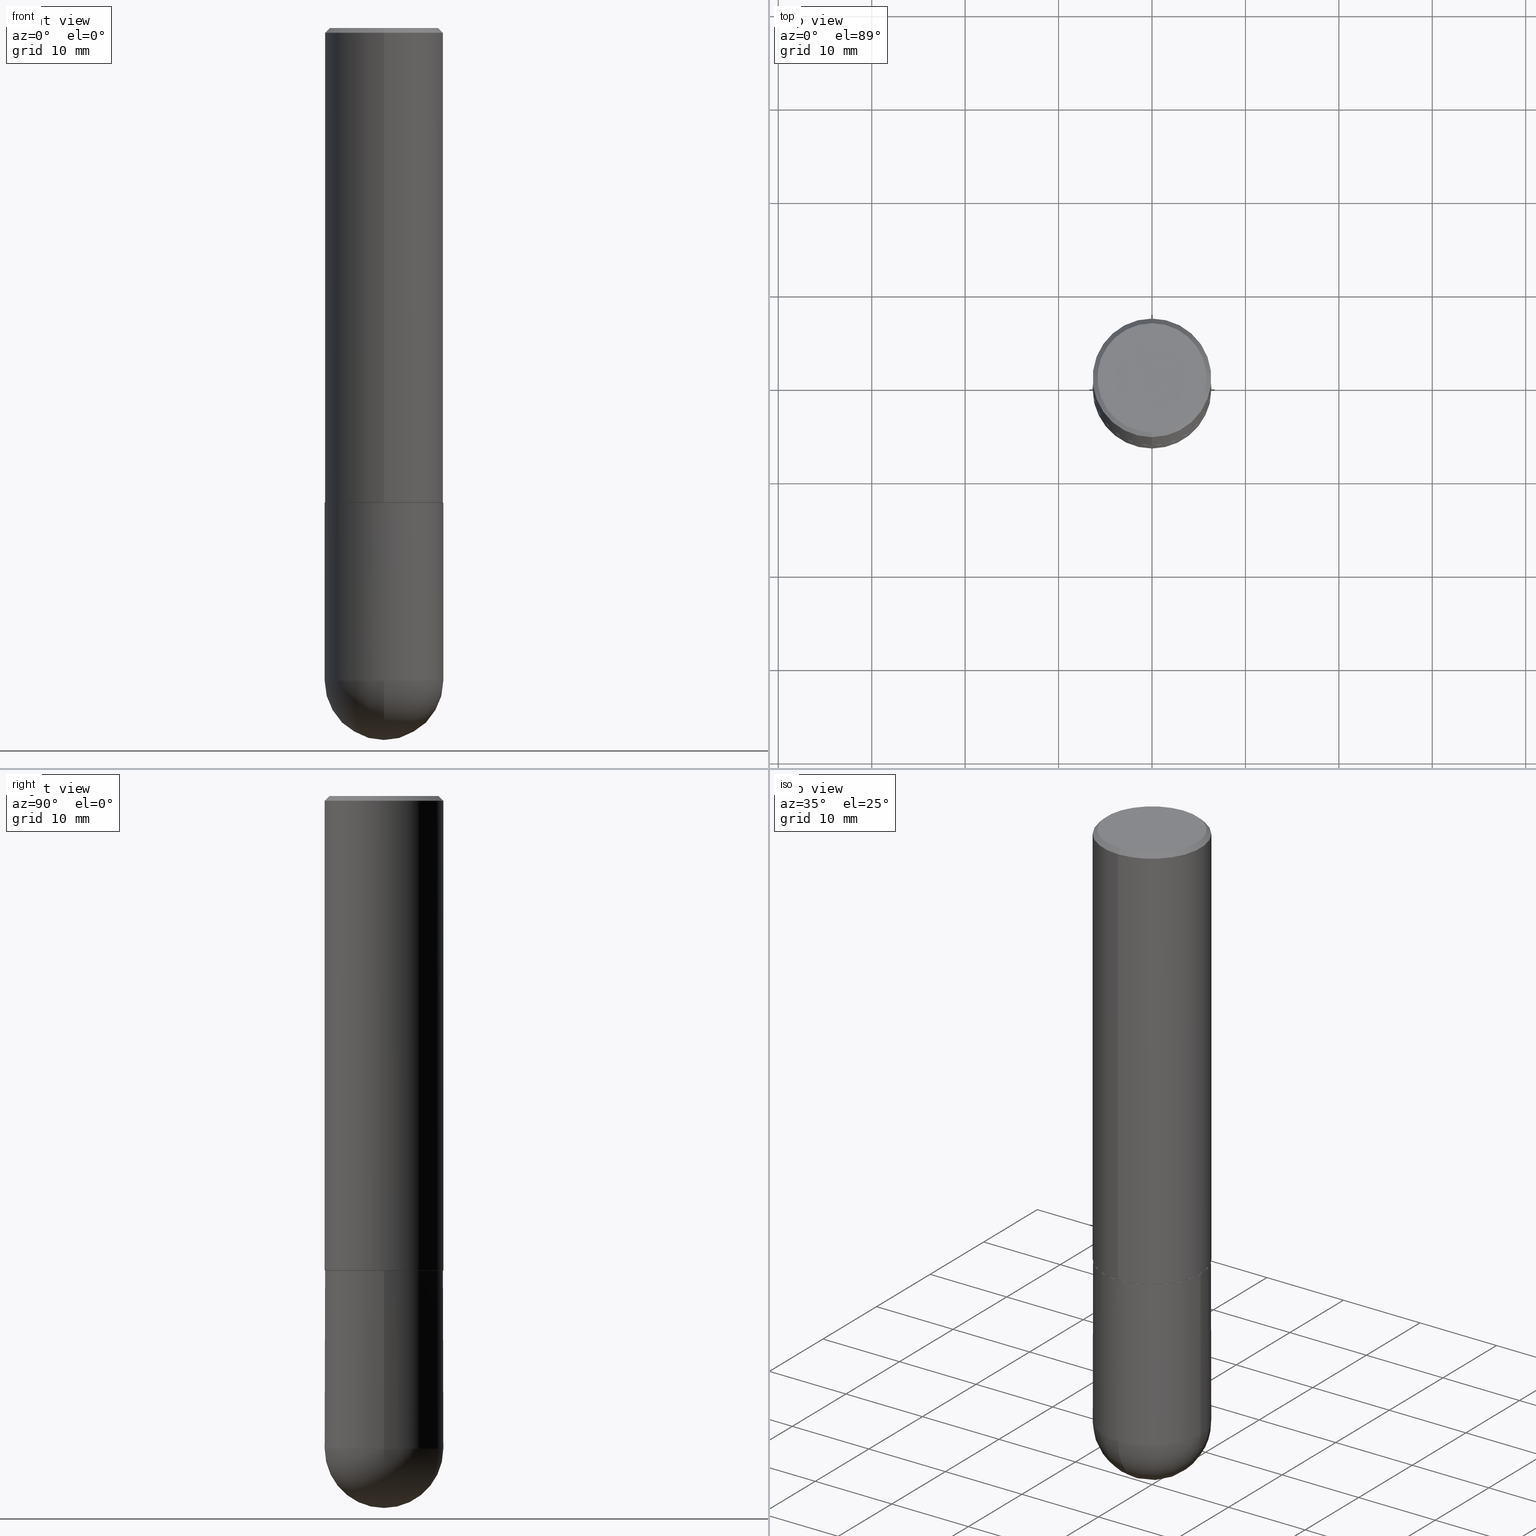
[diagram: canonical four-view strip — front | top / right | iso, engineering-drawing reading convention]
A machine part, canonical four-view strip (front | top / right | iso — engineering-drawing reading convention). The complete STEP part file that produces these views, byte-faithful:
ISO-10303-21;
HEADER;
FILE_DESCRIPTION (( 'STEP AP203' ),
    '1' );
FILE_NAME ('30185.STEP',
    '2024-02-21T16:36:16',
    ( '' ),
    ( '' ),
    'SwSTEP 2.0',
    'SolidWorks 2023',
    '' );
FILE_SCHEMA (( 'CONFIG_CONTROL_DESIGN' ));
ENDSEC;

DATA;
#1 = FACE_OUTER_BOUND ( 'NONE', #136, .T. ) ;
#2 = ORIENTED_EDGE ( 'NONE', *, *, #189, .T. ) ;
#3 = AXIS2_PLACEMENT_3D ( 'NONE', #45, #167, #302 ) ;
#4 = DIRECTION ( 'NONE',  ( -2.444172389132166101E-29, 3.493337881850475664E-15, 1.000000000000000000 ) ) ;
#5 = CARTESIAN_POINT ( 'NONE',  ( 6.725039217009124520E-29, -9.601573681818649859E-15, -2.750000000000000000 ) ) ;
#6 = AXIS2_PLACEMENT_3D ( 'NONE', #332, #266, #401 ) ;
#7 = LOCAL_TIME ( 11, 36, 16.00000000000000000, #338 ) ;
#8 = DATE_AND_TIME ( #229, #138 ) ;
#9 = ORIENTED_EDGE ( 'NONE', *, *, #46, .T. ) ;
#10 = EDGE_CURVE ( 'NONE', #72, #259, #12, .T. ) ;
#11 = DATE_TIME_ROLE ( 'creation_date' ) ;
#12 = LINE ( 'NONE', #395, #387 ) ;
#13 =( CONVERSION_BASED_UNIT ( 'INCH', #402 ) LENGTH_UNIT ( ) NAMED_UNIT ( #60 ) );
#14 = ORIENTED_EDGE ( 'NONE', *, *, #260, .F. ) ;
#15 = AXIS2_PLACEMENT_3D ( 'NONE', #152, #88, #316 ) ;
#16 = PRODUCT ( '30185', '30185', '', ( #393 ) ) ;
#17 = PRODUCT_DEFINITION_FORMATION_WITH_SPECIFIED_SOURCE ( 'ANY', '', #16, .NOT_KNOWN. ) ;
#18 = ORIENTED_EDGE ( 'NONE', *, *, #128, .F. ) ;
#19 = EDGE_CURVE ( 'NONE', #371, #403, #109, .T. ) ;
#20 = APPROVAL_STATUS ( 'not_yet_approved' ) ;
#21 = DIRECTION ( 'NONE',  ( -1.000000000000000000, 6.982962677686265922E-15, -4.876176775795935793E-29 ) ) ;
#22 = EDGE_LOOP ( 'NONE', ( #108, #295, #161, #208 ) ) ;
#23 = DIRECTION ( 'NONE',  ( -2.445468806185136877E-29, 3.491481338843145188E-15, 1.000000000000000000 ) ) ;
#24 = AXIS2_PLACEMENT_3D ( 'NONE', #184, #180, #317 ) ;
#25 = DIRECTION ( 'NONE',  ( -2.444172389132166101E-29, 3.493337881850475664E-15, 1.000000000000000000 ) ) ;
#26 = DIRECTION ( 'NONE',  ( -2.444172389132166101E-29, 3.493337881850475664E-15, 1.000000000000000000 ) ) ;
#27 = FACE_OUTER_BOUND ( 'NONE', #160, .T. ) ;
#28 = APPROVAL ( #20, 'UNSPECIFIED' ) ;
#29 = DIRECTION ( 'NONE',  ( -6.982962677686265133E-15, -1.000000000000000000, 3.291383124896702687E-15 ) ) ;
#30 = PLANE ( 'NONE',  #87 ) ;
#31 = ORIENTED_EDGE ( 'NONE', *, *, #10, .T. ) ;
#32 = ADVANCED_FACE ( 'NONE', ( #230 ), #334, .F. ) ;
#33 = CARTESIAN_POINT ( 'NONE',  ( 7.015976219256266741E-29, -1.093331829968014633E-14, -3.000000000000000888 ) ) ;
#34 = ORIENTED_EDGE ( 'NONE', *, *, #84, .F. ) ;
#35 = CIRCLE ( 'NONE', #357, 0.2500000000000000000 ) ;
#36 = CONICAL_SURFACE ( 'NONE', #183, 0.2500000000000000000, 0.7853981633974469467 ) ;
#37 = CARTESIAN_POINT ( 'NONE',  ( 0.2500000000000000000, -8.728703347107858632E-15, -2.000000000000000444 ) ) ;
#38 = CARTESIAN_POINT ( 'NONE',  ( -1.646519519465166770E-15, -0.2299999999999998990, 8.978019924995039553E-16 ) ) ;
#39 = FACE_OUTER_BOUND ( 'NONE', #52, .T. ) ;
#40 = EDGE_CURVE ( 'NONE', #255, #362, #233, .T. ) ;
#41 = CIRCLE ( 'NONE', #6, 0.2500000000000000000 ) ;
#42 = DIRECTION ( 'NONE',  ( 0.000000000000000000, 0.000000000000000000, 1.000000000000000000 ) ) ;
#43 = ORIENTED_EDGE ( 'NONE', *, *, #103, .F. ) ;
#44 = PERSON_AND_ORGANIZATION ( #244, #145 ) ;
#45 = CARTESIAN_POINT ( 'NONE',  ( 0.000000000000000000, 0.000000000000000000, 0.000000000000000000 ) ) ;
#46 = EDGE_CURVE ( 'NONE', #352, #362, #41, .T. ) ;
#47 = APPROVAL_ROLE ( '' ) ;
#48 = ORIENTED_EDGE ( 'NONE', *, *, #372, .F. ) ;
#49 = PERSON_AND_ORGANIZATION ( #244, #145 ) ;
#50 = AXIS2_PLACEMENT_3D ( 'NONE', #381, #294, #325 ) ;
#51 = CARTESIAN_POINT ( 'NONE',  ( 4.890937612370273754E-29, -6.982962677686291954E-15, -2.000000000000000444 ) ) ;
#52 = EDGE_LOOP ( 'NONE', ( #98, #68, #82, #369 ) ) ;
#53 = CARTESIAN_POINT ( 'NONE',  ( 6.725039217009124520E-29, -9.601573681818649859E-15, -2.750000000000000000 ) ) ;
#54 = ADVANCED_FACE ( 'NONE', ( #142 ), #273, .T. ) ;
#55 = LINE ( 'NONE', #279, #96 ) ;
#56 = DIRECTION ( 'NONE',  ( 1.000000000000000000, -6.982962677686262766E-15, 0.000000000000000000 ) ) ;
#57 = CC_DESIGN_PERSON_AND_ORGANIZATION_ASSIGNMENT ( #139, #396, ( #134 ) ) ;
#58 = CARTESIAN_POINT ( 'NONE',  ( 1.772804125721499264E-15, 0.2489999999999930047, -2.000000000000000888 ) ) ;
#59 = APPLICATION_CONTEXT ( 'configuration controlled 3d designs of mechanical parts and assemblies' ) ;
#60 = DIMENSIONAL_EXPONENTS ( 1.000000000000000000, 0.000000000000000000, 0.000000000000000000, 0.000000000000000000, 0.000000000000000000, 0.000000000000000000, 0.000000000000000000 ) ;
#61 = DIRECTION ( 'NONE',  ( 1.000000000000000000, -6.982962677686262766E-15, 0.000000000000000000 ) ) ;
#62 = SPHERICAL_SURFACE ( 'NONE', #50, 0.2500000000000001110 ) ;
#63 = ORIENTED_EDGE ( 'NONE', *, *, #405, .F. ) ;
#64 = DIRECTION ( 'NONE',  ( -2.444172389132165541E-29, 3.493337881850476059E-15, 1.000000000000000000 ) ) ;
#65 = DIRECTION ( 'NONE',  ( -1.000000000000000000, 7.105427357601001070E-15, -4.926315508542082329E-29 ) ) ;
#66 = CONICAL_SURFACE ( 'NONE', #206, 0.2489999999999999991, 0.7853981633975336552 ) ;
#67 = CYLINDRICAL_SURFACE ( 'NONE', #117, 0.2500000000000001110 ) ;
#68 = ORIENTED_EDGE ( 'NONE', *, *, #260, .T. ) ;
#69 = DIRECTION ( 'NONE',  ( 1.000000000000000000, -6.982962677686262766E-15, 0.000000000000000000 ) ) ;
#70 = EDGE_CURVE ( 'NONE', #107, #225, #170, .T. ) ;
#71 = COORDINATED_UNIVERSAL_TIME_OFFSET ( 5, 0, .BEHIND. ) ;
#72 = VERTEX_POINT ( 'NONE', #175 ) ;
#73 = CIRCLE ( 'NONE', #231, 0.2489999999999999991 ) ;
#74 = APPROVAL_PERSON_ORGANIZATION ( #368, #227, #237 ) ;
#75 = CARTESIAN_POINT ( 'NONE',  ( 1.745740669421566875E-15, 0.2499999999999999167, -0.02000000000000093023 ) ) ;
#76 = COORDINATED_UNIVERSAL_TIME_OFFSET ( 5, 0, .BEHIND. ) ;
#77 = DIRECTION ( 'NONE',  ( 1.000000000000000000, -6.982962677686266711E-15, 0.000000000000000000 ) ) ;
#78 = PRODUCT_DEFINITION_SHAPE ( 'NONE', 'NONE',  #134 ) ;
#79 =( NAMED_UNIT ( * ) PLANE_ANGLE_UNIT ( ) SI_UNIT ( $, .RADIAN. ) );
#80 = EDGE_LOOP ( 'NONE', ( #127, #228 ) ) ;
#81 = AXIS2_PLACEMENT_3D ( 'NONE', #191, #286, #412 ) ;
#82 = ORIENTED_EDGE ( 'NONE', *, *, #242, .F. ) ;
#83 = DIRECTION ( 'NONE',  ( -2.444172389132166101E-29, 3.493337881850475664E-15, 1.000000000000000000 ) ) ;
#84 = EDGE_CURVE ( 'NONE', #326, #362, #89, .T. ) ;
#85 = CYLINDRICAL_SURFACE ( 'NONE', #15, 0.2500000000000000000 ) ;
#86 = DIRECTION ( 'NONE',  ( 1.000000000000000000, -6.982962677686265922E-15, 4.883557194083112340E-29 ) ) ;
#87 = AXIS2_PLACEMENT_3D ( 'NONE', #354, #64, #289 ) ;
#88 = DIRECTION ( 'NONE',  ( -2.445468806185136597E-29, 3.491481338843145583E-15, 1.000000000000000000 ) ) ;
#89 = LINE ( 'NONE', #406, #250 ) ;
#90 = DIRECTION ( 'NONE',  ( -6.982962677686265133E-15, -1.000000000000000000, 3.291383124896702687E-15 ) ) ;
#91 = CIRCLE ( 'NONE', #151, 0.2500000000000001110 ) ;
#92 = CARTESIAN_POINT ( 'NONE',  ( -0.2500000000000000000, -6.515911340352220442E-15, -2.000000000000000444 ) ) ;
#93 = DIRECTION ( 'NONE',  ( -2.445468806185136597E-29, 3.491481338843145583E-15, 1.000000000000000000 ) ) ;
#94 = CARTESIAN_POINT ( 'NONE',  ( -1.776356839400184989E-15, -0.2500000000000098810, -2.749999999999998668 ) ) ;
#95 = ORIENTED_EDGE ( 'NONE', *, *, #103, .T. ) ;
#96 = VECTOR ( 'NONE', #114, 39.37007874015748143 ) ;
#97 = CARTESIAN_POINT ( 'NONE',  ( 1.776356839400276103E-15, 0.2499999999999933109, -1.999000000000000998 ) ) ;
#98 = ORIENTED_EDGE ( 'NONE', *, *, #186, .T. ) ;
#99 = SECURITY_CLASSIFICATION_LEVEL ( 'unclassified' ) ;
#100 = ORIENTED_EDGE ( 'NONE', *, *, #115, .T. ) ;
#101 = PERSON_AND_ORGANIZATION ( #244, #145 ) ;
#102 = DIRECTION ( 'NONE',  ( -2.445468806185136597E-29, 3.491481338843145583E-15, 1.000000000000000000 ) ) ;
#103 = EDGE_CURVE ( 'NONE', #287, #255, #131, .T. ) ;
#104 = CIRCLE ( 'NONE', #275, 0.2489999999999999991 ) ;
#105 = ORIENTED_EDGE ( 'NONE', *, *, #40, .F. ) ;
#106 = PERSON_AND_ORGANIZATION_ROLE ( 'classification_officer' ) ;
#107 = VERTEX_POINT ( 'NONE', #243 ) ;
#108 = ORIENTED_EDGE ( 'NONE', *, *, #353, .F. ) ;
#109 = CIRCLE ( 'NONE', #349, 0.2500000000000000000 ) ;
#110 = ADVANCED_FACE ( 'NONE', ( #377 ), #36, .T. ) ;
#111 = AXIS2_PLACEMENT_3D ( 'NONE', #348, #319, #311 ) ;
#112 = CARTESIAN_POINT ( 'NONE',  ( -1.745740669421567467E-15, -0.2500000000000001110, 8.733344704626194091E-16 ) ) ;
#113 = LINE ( 'NONE', #112, #268 ) ;
#114 = DIRECTION ( 'NONE',  ( 5.024295867788490741E-15, 0.7071067811866103003, 0.7071067811864847341 ) ) ;
#115 = EDGE_CURVE ( 'NONE', #362, #352, #199, .T. ) ;
#116 = DATE_AND_TIME ( #345, #246 ) ;
#117 = AXIS2_PLACEMENT_3D ( 'NONE', #162, #4, #355 ) ;
#118 = CARTESIAN_POINT ( 'NONE',  ( 4.888344778264345199E-31, -6.986675763700970113E-17, -0.02000000000000005593 ) ) ;
#119 = DIRECTION ( 'NONE',  ( -2.445468806185136597E-29, 3.491481338843145583E-15, 1.000000000000000000 ) ) ;
#120 = LINE ( 'NONE', #249, #389 ) ;
#121 = EDGE_CURVE ( 'NONE', #259, #352, #113, .T. ) ;
#122 = CARTESIAN_POINT ( 'NONE',  ( 6.393919439095240515E-29, -1.007575604995870173E-14, -2.750000000000000444 ) ) ;
#123 = AXIS2_PLACEMENT_3D ( 'NONE', #277, #25, #374 ) ;
#124 = DIRECTION ( 'NONE',  ( -2.444172389132166101E-29, 3.493337881850475664E-15, 1.000000000000000000 ) ) ;
#125 = ORIENTED_EDGE ( 'NONE', *, *, #219, .F. ) ;
#126 = CARTESIAN_POINT ( 'NONE',  ( 4.888344778264332763E-29, -6.986675763700951328E-15, -2.000000000000000444 ) ) ;
#127 = ORIENTED_EDGE ( 'NONE', *, *, #186, .F. ) ;
#128 = EDGE_CURVE ( 'NONE', #360, #225, #288, .T. ) ;
#129 = CARTESIAN_POINT ( 'NONE',  ( 6.393919439095240515E-29, -1.007575604995870173E-14, -2.750000000000000444 ) ) ;
#130 = EDGE_LOOP ( 'NONE', ( #34, #2, #262, #203 ) ) ;
#131 = CIRCLE ( 'NONE', #123, 0.2299999999999998990 ) ;
#132 = MANIFOLD_SOLID_BREP ( 'Body-Move/Copy2[1]', #397 ) ;
#133 = ORIENTED_EDGE ( 'NONE', *, *, #340, .F. ) ;
#134 = PRODUCT_DEFINITION ( 'UNKNOWN', '', #17, #347 ) ;
#135 =( NAMED_UNIT ( * ) SI_UNIT ( $, .STERADIAN. ) SOLID_ANGLE_UNIT ( ) );
#136 = EDGE_LOOP ( 'NONE', ( #14, #291, #31, #336 ) ) ;
#137 = DIRECTION ( 'NONE',  ( -4.937700262164969294E-15, -0.7071067811866054154, 0.7071067811864896191 ) ) ;
#138 = LOCAL_TIME ( 11, 36, 16.00000000000000000, #71 ) ;
#139 = PERSON_AND_ORGANIZATION ( #244, #145 ) ;
#140 = ORIENTED_EDGE ( 'NONE', *, *, #19, .T. ) ;
#141 = APPROVAL_ROLE ( '' ) ;
#142 = FACE_OUTER_BOUND ( 'NONE', #304, .T. ) ;
#143 = ORIENTED_EDGE ( 'NONE', *, *, #285, .F. ) ;
#144 = AXIS2_PLACEMENT_3D ( 'NONE', #359, #188, #69 ) ;
#145 = ORGANIZATION ( 'UNSPECIFIED', 'UNSPECIFIED', '' ) ;
#146 = CARTESIAN_POINT ( 'NONE',  ( 4.885900605875200945E-29, -6.983182425819101458E-15, -1.999000000000000110 ) ) ;
#147 = CARTESIAN_POINT ( 'NONE',  ( 0.2500000000000000000, -1.745740669421566678E-15, 1.219044193948983948E-29 ) ) ;
#148 = CARTESIAN_POINT ( 'NONE',  ( 1.745740669421632745E-15, 0.2499999999999902300, -2.750000000000000888 ) ) ;
#149 = ADVANCED_BREP_SHAPE_REPRESENTATION ( '30185', ( #132, #269, #290 ), #185 ) ;
#150 = ADVANCED_FACE ( 'NONE', ( #215 ), #379, .F. ) ;
#151 = AXIS2_PLACEMENT_3D ( 'NONE', #129, #65, #222 ) ;
#152 = CARTESIAN_POINT ( 'NONE',  ( 0.000000000000000000, 0.000000000000000000, 0.000000000000000000 ) ) ;
#153 = DIRECTION ( 'NONE',  ( -2.444172389132166101E-29, 3.493337881850476059E-15, 1.000000000000000000 ) ) ;
#154 = DIRECTION ( 'NONE',  ( -6.982962677686265922E-15, -1.000000000000000000, 3.493337881850475270E-15 ) ) ;
#155 = LINE ( 'NONE', #351, #343 ) ;
#156 = ORIENTED_EDGE ( 'NONE', *, *, #394, .F. ) ;
#157 = AXIS2_PLACEMENT_3D ( 'NONE', #182, #83, #240 ) ;
#158 = SPHERICAL_SURFACE ( 'NONE', #382, 0.2500000000000001110 ) ;
#159 = ADVANCED_FACE ( 'NONE', ( #214 ), #209, .T. ) ;
#160 = EDGE_LOOP ( 'NONE', ( #156, #174, #165, #253, #143 ) ) ;
#161 = ORIENTED_EDGE ( 'NONE', *, *, #70, .F. ) ;
#162 = CARTESIAN_POINT ( 'NONE',  ( 0.000000000000000000, 0.000000000000000000, 0.000000000000000000 ) ) ;
#163 = AXIS2_PLACEMENT_3D ( 'NONE', #172, #366, #21 ) ;
#164 = CIRCLE ( 'NONE', #337, 0.2299999999999998990 ) ;
#165 = ORIENTED_EDGE ( 'NONE', *, *, #210, .T. ) ;
#166 = DATE_AND_TIME ( #335, #399 ) ;
#167 = DIRECTION ( 'NONE',  ( -2.444172389132166101E-29, 3.493337881850475664E-15, 1.000000000000000000 ) ) ;
#168 = CALENDAR_DATE ( 2024, 21, 2 ) ;
#169 = ORIENTED_EDGE ( 'NONE', *, *, #242, .T. ) ;
#170 = CIRCLE ( 'NONE', #318, 0.2500000000000000000 ) ;
#171 = CC_DESIGN_APPROVAL ( #28, ( #178 ) ) ;
#172 = CARTESIAN_POINT ( 'NONE',  ( 1.745740669421615390E-15, 0.2499999999999930334, -2.000000000000000888 ) ) ;
#173 = CC_DESIGN_PERSON_AND_ORGANIZATION_ASSIGNMENT ( #391, #331, ( #17 ) ) ;
#174 = ORIENTED_EDGE ( 'NONE', *, *, #372, .T. ) ;
#175 = CARTESIAN_POINT ( 'NONE',  ( -1.738757706743831360E-15, -0.2490000000000069935, -1.999999999999999334 ) ) ;
#176 = CC_DESIGN_PERSON_AND_ORGANIZATION_ASSIGNMENT ( #44, #270, ( #17 ) ) ;
#177 = VECTOR ( 'NONE', #202, 39.37007874015748143 ) ;
#178 = SECURITY_CLASSIFICATION ( '', '', #99 ) ;
#179 = DIRECTION ( 'NONE',  ( -6.982962677686266711E-15, -1.000000000000000000, 3.278217592397113101E-15 ) ) ;
#180 = DIRECTION ( 'NONE',  ( 2.444172389132165541E-29, -3.493337881850476059E-15, -1.000000000000000000 ) ) ;
#181 = SHAPE_DEFINITION_REPRESENTATION ( #78, #149 ) ;
#182 = CARTESIAN_POINT ( 'NONE',  ( 4.888344778264345199E-31, -6.986675763700970113E-17, -0.02000000000000005593 ) ) ;
#183 = AXIS2_PLACEMENT_3D ( 'NONE', #118, #375, #284 ) ;
#184 = CARTESIAN_POINT ( 'NONE',  ( 1.606081415867840476E-15, 0.2299999999999998990, -7.563005729886615428E-16 ) ) ;
#185 =( GEOMETRIC_REPRESENTATION_CONTEXT ( 3 ) GLOBAL_UNCERTAINTY_ASSIGNED_CONTEXT ( ( #313 ) ) GLOBAL_UNIT_ASSIGNED_CONTEXT ( ( #13, #79, #135 ) ) REPRESENTATION_CONTEXT ( 'NONE', 'WORKASPACE' ) );
#186 = EDGE_CURVE ( 'NONE', #72, #205, #73, .T. ) ;
#187 = DIRECTION ( 'NONE',  ( -4.851104656540957175E-15, -0.7071067811865490160, -0.7071067811865460184 ) ) ;
#188 = DIRECTION ( 'NONE',  ( -2.445468806185136597E-29, 3.491481338843145583E-15, 1.000000000000000000 ) ) ;
#189 = EDGE_CURVE ( 'NONE', #326, #259, #312, .T. ) ;
#190 = ADVANCED_FACE ( 'NONE', ( #27 ), #85, .T. ) ;
#191 = CARTESIAN_POINT ( 'NONE',  ( 4.888344778264345199E-31, -6.986675763700970113E-17, -0.02000000000000005593 ) ) ;
#192 = CC_DESIGN_APPROVAL ( #227, ( #134 ) ) ;
#193 = FACE_OUTER_BOUND ( 'NONE', #197, .T. ) ;
#194 = EDGE_LOOP ( 'NONE', ( #339, #373, #404, #125, #309 ) ) ;
#195 = DIRECTION ( 'NONE',  ( -1.000000000000000000, 6.982962677686265922E-15, -4.883557194083113462E-29 ) ) ;
#196 = ORIENTED_EDGE ( 'NONE', *, *, #330, .T. ) ;
#197 = EDGE_LOOP ( 'NONE', ( #18, #236, #48, #133 ) ) ;
#198 = EDGE_CURVE ( 'NONE', #205, #72, #104, .T. ) ;
#199 = CIRCLE ( 'NONE', #157, 0.2500000000000000000 ) ;
#200 = CC_DESIGN_APPROVAL ( #385, ( #17 ) ) ;
#201 = CALENDAR_DATE ( 2024, 21, 2 ) ;
#202 = DIRECTION ( 'NONE',  ( 4.937700262164540942E-15, 0.7071067811865441310, -0.7071067811865509034 ) ) ;
#203 = ORIENTED_EDGE ( 'NONE', *, *, #115, .F. ) ;
#204 = APPROVAL_DATE_TIME ( #8, #227 ) ;
#205 = VERTEX_POINT ( 'NONE', #58 ) ;
#206 = AXIS2_PLACEMENT_3D ( 'NONE', #292, #384, #90 ) ;
#207 = DATE_AND_TIME ( #201, #358 ) ;
#208 = ORIENTED_EDGE ( 'NONE', *, *, #210, .F. ) ;
#209 = CYLINDRICAL_SURFACE ( 'NONE', #111, 0.2500000000000000000 ) ;
#210 = EDGE_CURVE ( 'NONE', #329, #107, #35, .T. ) ;
#211 = CARTESIAN_POINT ( 'NONE',  ( 1.675911042644703774E-15, 0.2299999999999998990, -7.091334331517141048E-16 ) ) ;
#212 = AXIS2_PLACEMENT_3D ( 'NONE', #213, #26, #346 ) ;
#213 = CARTESIAN_POINT ( 'NONE',  ( 4.885900605875200945E-29, -6.983182425819101458E-15, -1.999000000000000110 ) ) ;
#214 = FACE_OUTER_BOUND ( 'NONE', #194, .T. ) ;
#215 = FACE_OUTER_BOUND ( 'NONE', #264, .T. ) ;
#216 = AXIS2_PLACEMENT_3D ( 'NONE', #5, #254, #324 ) ;
#217 = CARTESIAN_POINT ( 'NONE',  ( 4.890937612370273754E-29, -6.982962677686291954E-15, -2.000000000000000444 ) ) ;
#218 = CARTESIAN_POINT ( 'NONE',  ( -2.305692417276057151E-45, 3.295415127418944709E-31, 9.433427967389492523E-17 ) ) ;
#219 = EDGE_CURVE ( 'NONE', #107, #371, #407, .T. ) ;
#220 = DIRECTION ( 'NONE',  ( 1.000000000000000000, -6.982962677686266711E-15, 0.000000000000000000 ) ) ;
#221 = ORIENTED_EDGE ( 'NONE', *, *, #405, .T. ) ;
#222 = DIRECTION ( 'NONE',  ( -7.105427357601001859E-15, -1.000000000000000000, 0.000000000000000000 ) ) ;
#223 = AXIS2_PLACEMENT_3D ( 'NONE', #217, #93, #220 ) ;
#224 = CARTESIAN_POINT ( 'NONE',  ( 1.745740669421566875E-15, 0.2499999999999999167, -0.02000000000000093023 ) ) ;
#225 = VERTEX_POINT ( 'NONE', #148 ) ;
#226 =( LENGTH_UNIT ( ) NAMED_UNIT ( * ) SI_UNIT ( $, .METRE. ) );
#227 = APPROVAL ( #307, 'UNSPECIFIED' ) ;
#228 = ORIENTED_EDGE ( 'NONE', *, *, #198, .F. ) ;
#229 = CALENDAR_DATE ( 2024, 21, 2 ) ;
#230 = FACE_OUTER_BOUND ( 'NONE', #321, .T. ) ;
#231 = AXIS2_PLACEMENT_3D ( 'NONE', #280, #247, #29 ) ;
#232 = PERSON_AND_ORGANIZATION_ROLE ( 'design_owner' ) ;
#233 = LINE ( 'NONE', #75, #177 ) ;
#234 = CC_DESIGN_DATE_AND_TIME_ASSIGNMENT ( #166, #301, ( #178 ) ) ;
#235 = COORDINATED_UNIVERSAL_TIME_OFFSET ( 5, 0, .BEHIND. ) ;
#236 = ORIENTED_EDGE ( 'NONE', *, *, #353, .T. ) ;
#237 = APPROVAL_ROLE ( '' ) ;
#238 = VERTEX_POINT ( 'NONE', #408 ) ;
#239 = APPROVAL_PERSON_ORGANIZATION ( #49, #28, #141 ) ;
#240 = DIRECTION ( 'NONE',  ( -6.982962677686265922E-15, -1.000000000000000000, 3.500180241882337261E-15 ) ) ;
#241 = DIRECTION ( 'NONE',  ( -2.444172389132166101E-29, 3.493337881850476059E-15, 1.000000000000000000 ) ) ;
#242 = EDGE_CURVE ( 'NONE', #259, #326, #350, .T. ) ;
#243 = CARTESIAN_POINT ( 'NONE',  ( 0.2500000000000000000, -1.003800884917403995E-14, -2.750000000000000000 ) ) ;
#244 = PERSON ( 'UNSPECIFIED', 'UNSPECIFIED', 'UNSPECIFIED', ('UNSPECIFIED'), ('UNSPECIFIED'), ('UNSPECIFIED') ) ;
#245 = CIRCLE ( 'NONE', #223, 0.2500000000000000000 ) ;
#246 = LOCAL_TIME ( 11, 36, 16.00000000000000000, #272 ) ;
#247 = DIRECTION ( 'NONE',  ( -2.444172389132166101E-29, 3.493337881850475664E-15, 1.000000000000000000 ) ) ;
#248 = CARTESIAN_POINT ( 'NONE',  ( 6.393919439095240515E-29, -1.007575604995870173E-14, -2.750000000000000444 ) ) ;
#249 = CARTESIAN_POINT ( 'NONE',  ( -0.2500000000000000000, 1.776356839400250465E-15, -1.229733772563726445E-29 ) ) ;
#250 = VECTOR ( 'NONE', #153, 39.37007874015748143 ) ;
#251 = FACE_OUTER_BOUND ( 'NONE', #130, .T. ) ;
#252 = CC_DESIGN_PERSON_AND_ORGANIZATION_ASSIGNMENT ( #298, #232, ( #16 ) ) ;
#253 = ORIENTED_EDGE ( 'NONE', *, *, #219, .T. ) ;
#254 = DIRECTION ( 'NONE',  ( -2.445468806185136597E-29, 3.491481338843145583E-15, 1.000000000000000000 ) ) ;
#255 = VERTEX_POINT ( 'NONE', #211 ) ;
#256 = DIRECTION ( 'NONE',  ( -2.445468806185136877E-29, 3.491481338843145188E-15, 1.000000000000000000 ) ) ;
#257 = DIRECTION ( 'NONE',  ( -6.982962677686265133E-15, -1.000000000000000000, 3.291383124896702687E-15 ) ) ;
#258 = CONICAL_SURFACE ( 'NONE', #81, 0.2500000000000000000, 0.7853981633974469467 ) ;
#259 = VERTEX_POINT ( 'NONE', #342 ) ;
#260 = EDGE_CURVE ( 'NONE', #205, #326, #55, .T. ) ;
#261 = DIRECTION ( 'NONE',  ( 1.000000000000000000, 0.000000000000000000, 0.000000000000000000 ) ) ;
#262 = ORIENTED_EDGE ( 'NONE', *, *, #121, .T. ) ;
#263 = APPLICATION_PROTOCOL_DEFINITION ( 'international standard', 'config_control_design', 1994, #306 ) ;
#264 = EDGE_LOOP ( 'NONE', ( #196, #95 ) ) ;
#265 = APPLICATION_PROTOCOL_DEFINITION ( 'international standard', 'config_control_design', 1994, #59 ) ;
#266 = DIRECTION ( 'NONE',  ( -2.444172389132166101E-29, 3.493337881850475664E-15, 1.000000000000000000 ) ) ;
#267 = VECTOR ( 'NONE', #23, 39.37007874015748143 ) ;
#268 = VECTOR ( 'NONE', #241, 39.37007874015748143 ) ;
#269 = MANIFOLD_SOLID_BREP ( 'Body-Move/Copy2[2]', #296 ) ;
#270 = PERSON_AND_ORGANIZATION_ROLE ( 'design_supplier' ) ;
#271 = ORIENTED_EDGE ( 'NONE', *, *, #46, .F. ) ;
#272 = COORDINATED_UNIVERSAL_TIME_OFFSET ( 5, 0, .BEHIND. ) ;
#273 = CYLINDRICAL_SURFACE ( 'NONE', #3, 0.2500000000000001110 ) ;
#274 = ORIENTED_EDGE ( 'NONE', *, *, #330, .F. ) ;
#275 = AXIS2_PLACEMENT_3D ( 'NONE', #378, #314, #341 ) ;
#276 = CC_DESIGN_PERSON_AND_ORGANIZATION_ASSIGNMENT ( #400, #106, ( #178 ) ) ;
#277 = CARTESIAN_POINT ( 'NONE',  ( -2.305692417276057151E-45, 3.295415127418944709E-31, 9.433427967389492523E-17 ) ) ;
#278 = APPROVAL_DATE_TIME ( #116, #28 ) ;
#279 = CARTESIAN_POINT ( 'NONE',  ( 1.769251412042697971E-15, 0.2489999999999930047, -2.000000000000000888 ) ) ;
#280 = CARTESIAN_POINT ( 'NONE',  ( 4.888344778264332763E-29, -6.986675763700951328E-15, -2.000000000000000444 ) ) ;
#281 = ADVANCED_FACE ( 'NONE', ( #39 ), #66, .T. ) ;
#282 = CONICAL_SURFACE ( 'NONE', #305, 0.2489999999999999991, 0.7853981633975336552 ) ;
#283 = DIRECTION ( 'NONE',  ( 6.982962677686266711E-15, 1.000000000000000000, 0.000000000000000000 ) ) ;
#284 = DIRECTION ( 'NONE',  ( 6.982962677686265922E-15, 1.000000000000000000, -3.500180241882337261E-15 ) ) ;
#285 = EDGE_CURVE ( 'NONE', #403, #371, #245, .T. ) ;
#286 = DIRECTION ( 'NONE',  ( 2.444172389132166101E-29, -3.493337881850475664E-15, -1.000000000000000000 ) ) ;
#287 = VERTEX_POINT ( 'NONE', #38 ) ;
#288 = CIRCLE ( 'NONE', #297, 0.2500000000000001110 ) ;
#289 = DIRECTION ( 'NONE',  ( -6.982962677686265922E-15, -1.000000000000000000, 3.493337881850476059E-15 ) ) ;
#290 = AXIS2_PLACEMENT_3D ( 'NONE', #370, #42, #261 ) ;
#291 = ORIENTED_EDGE ( 'NONE', *, *, #198, .T. ) ;
#292 = CARTESIAN_POINT ( 'NONE',  ( 4.888344778264332763E-29, -6.986675763700951328E-15, -2.000000000000000444 ) ) ;
#293 = ORIENTED_EDGE ( 'NONE', *, *, #285, .T. ) ;
#294 = DIRECTION ( 'NONE',  ( -1.000000000000000000, 6.982962677686265922E-15, -4.883557194083113462E-29 ) ) ;
#295 = ORIENTED_EDGE ( 'NONE', *, *, #128, .T. ) ;
#296 = CLOSED_SHELL ( 'NONE', ( #281, #54, #363, #110, #310, #315, #411, #150 ) ) ;
#297 = AXIS2_PLACEMENT_3D ( 'NONE', #248, #86, #283 ) ;
#298 = PERSON_AND_ORGANIZATION ( #244, #145 ) ;
#299 = EDGE_LOOP ( 'NONE', ( #63, #274, #327, #100 ) ) ;
#300 = PRODUCT_RELATED_PRODUCT_CATEGORY ( 'detail', '', ( #16 ) ) ;
#301 = DATE_TIME_ROLE ( 'classification_date' ) ;
#302 = DIRECTION ( 'NONE',  ( -6.982962677686266711E-15, -1.000000000000000000, 3.493337881850476059E-15 ) ) ;
#303 = DATE_AND_TIME ( #168, #7 ) ;
#304 = EDGE_LOOP ( 'NONE', ( #169, #392, #271, #308 ) ) ;
#305 = AXIS2_PLACEMENT_3D ( 'NONE', #126, #390, #257 ) ;
#306 = APPLICATION_CONTEXT ( 'configuration controlled 3d designs of mechanical parts and assemblies' ) ;
#307 = APPROVAL_STATUS ( 'not_yet_approved' ) ;
#308 = ORIENTED_EDGE ( 'NONE', *, *, #121, .F. ) ;
#309 = ORIENTED_EDGE ( 'NONE', *, *, #70, .T. ) ;
#310 = ADVANCED_FACE ( 'NONE', ( #251 ), #67, .T. ) ;
#311 = DIRECTION ( 'NONE',  ( 1.000000000000000000, -6.982962677686266711E-15, 4.876176775795935793E-29 ) ) ;
#312 = CIRCLE ( 'NONE', #212, 0.2500000000000002220 ) ;
#313 = UNCERTAINTY_MEASURE_WITH_UNIT (LENGTH_MEASURE( 1.000000000000000082E-05 ), #13, 'distance_accuracy_value', 'NONE');
#314 = DIRECTION ( 'NONE',  ( -2.444172389132166101E-29, 3.493337881850475664E-15, 1.000000000000000000 ) ) ;
#315 = ADVANCED_FACE ( 'NONE', ( #1 ), #282, .T. ) ;
#316 = DIRECTION ( 'NONE',  ( 1.000000000000000000, -6.982962677686266711E-15, 4.876176775795935793E-29 ) ) ;
#317 = DIRECTION ( 'NONE',  ( 6.982962677686265922E-15, 1.000000000000000000, -3.493337881850476059E-15 ) ) ;
#318 = AXIS2_PLACEMENT_3D ( 'NONE', #398, #119, #61 ) ;
#319 = DIRECTION ( 'NONE',  ( -2.445468806185136597E-29, 3.491481338843145583E-15, 1.000000000000000000 ) ) ;
#320 = FACE_OUTER_BOUND ( 'NONE', #80, .T. ) ;
#321 = EDGE_LOOP ( 'NONE', ( #140, #293 ) ) ;
#322 = ADVANCED_FACE ( 'NONE', ( #386 ), #62, .T. ) ;
#323 = CARTESIAN_POINT ( 'NONE',  ( -1.715124499442882299E-15, -0.2500000000000000555, -0.01999999999999918163 ) ) ;
#324 = DIRECTION ( 'NONE',  ( 1.000000000000000000, -6.982962677686262766E-15, 0.000000000000000000 ) ) ;
#325 = DIRECTION ( 'NONE',  ( 6.982962677686265922E-15, 1.000000000000000000, -4.370956789862818783E-15 ) ) ;
#326 = VERTEX_POINT ( 'NONE', #97 ) ;
#327 = ORIENTED_EDGE ( 'NONE', *, *, #40, .T. ) ;
#328 = CIRCLE ( 'NONE', #144, 0.2500000000000000000 ) ;
#329 = VERTEX_POINT ( 'NONE', #94 ) ;
#330 = EDGE_CURVE ( 'NONE', #255, #287, #164, .T. ) ;
#331 = PERSON_AND_ORGANIZATION_ROLE ( 'creator' ) ;
#332 = CARTESIAN_POINT ( 'NONE',  ( 4.888344778264345199E-31, -6.986675763700970113E-17, -0.02000000000000005593 ) ) ;
#333 = APPROVAL_STATUS ( 'not_yet_approved' ) ;
#334 = PLANE ( 'NONE',  #163 ) ;
#335 = CALENDAR_DATE ( 2024, 21, 2 ) ;
#336 = ORIENTED_EDGE ( 'NONE', *, *, #189, .F. ) ;
#337 = AXIS2_PLACEMENT_3D ( 'NONE', #218, #124, #154 ) ;
#338 = COORDINATED_UNIVERSAL_TIME_OFFSET ( 5, 0, .BEHIND. ) ;
#339 = ORIENTED_EDGE ( 'NONE', *, *, #340, .T. ) ;
#340 = EDGE_CURVE ( 'NONE', #225, #238, #388, .T. ) ;
#341 = DIRECTION ( 'NONE',  ( -6.982962677686265133E-15, -1.000000000000000000, 3.291383124896702687E-15 ) ) ;
#342 = CARTESIAN_POINT ( 'NONE',  ( -1.745740669421519346E-15, -0.2500000000000072164, -1.998999999999999444 ) ) ;
#343 = VECTOR ( 'NONE', #187, 39.37007874015748143 ) ;
#344 = DIRECTION ( 'NONE',  ( -2.445468806185136597E-29, 3.491481338843145583E-15, 1.000000000000000000 ) ) ;
#345 = CALENDAR_DATE ( 2024, 21, 2 ) ;
#346 = DIRECTION ( 'NONE',  ( -6.982962677686266711E-15, -1.000000000000000000, 3.278217592397113101E-15 ) ) ;
#347 = DESIGN_CONTEXT ( 'detailed design', #59, 'design' ) ;
#348 = CARTESIAN_POINT ( 'NONE',  ( 0.000000000000000000, 0.000000000000000000, 0.000000000000000000 ) ) ;
#349 = AXIS2_PLACEMENT_3D ( 'NONE', #51, #102, #77 ) ;
#350 = CIRCLE ( 'NONE', #365, 0.2500000000000002220 ) ;
#351 = CARTESIAN_POINT ( 'NONE',  ( -1.715124499442882299E-15, -0.2500000000000000555, -0.01999999999999918163 ) ) ;
#352 = VERTEX_POINT ( 'NONE', #323 ) ;
#353 = EDGE_CURVE ( 'NONE', #360, #329, #91, .T. ) ;
#354 = CARTESIAN_POINT ( 'NONE',  ( 4.888344778264332763E-29, -6.986675763700951328E-15, -2.000000000000000444 ) ) ;
#355 = DIRECTION ( 'NONE',  ( -6.982962677686266711E-15, -1.000000000000000000, 3.493337881850476059E-15 ) ) ;
#356 = EDGE_LOOP ( 'NONE', ( #43, #221, #9, #105 ) ) ;
#357 = AXIS2_PLACEMENT_3D ( 'NONE', #53, #344, #56 ) ;
#358 = LOCAL_TIME ( 11, 36, 16.00000000000000000, #76 ) ;
#359 = CARTESIAN_POINT ( 'NONE',  ( 6.725039217009124520E-29, -9.601573681818649859E-15, -2.750000000000000000 ) ) ;
#360 = VERTEX_POINT ( 'NONE', #33 ) ;
#361 = FACE_OUTER_BOUND ( 'NONE', #356, .T. ) ;
#362 = VERTEX_POINT ( 'NONE', #224 ) ;
#363 = ADVANCED_FACE ( 'NONE', ( #361 ), #258, .T. ) ;
#364 = APPROVAL_DATE_TIME ( #303, #385 ) ;
#365 = AXIS2_PLACEMENT_3D ( 'NONE', #146, #410, #179 ) ;
#366 = DIRECTION ( 'NONE',  ( 2.438088387897960049E-29, -3.491481338843145188E-15, -1.000000000000000000 ) ) ;
#367 = APPROVAL_PERSON_ORGANIZATION ( #101, #385, #47 ) ;
#368 = PERSON_AND_ORGANIZATION ( #244, #145 ) ;
#369 = ORIENTED_EDGE ( 'NONE', *, *, #10, .F. ) ;
#370 = CARTESIAN_POINT ( 'NONE',  ( 0.000000000000000000, 0.000000000000000000, 0.000000000000000000 ) ) ;
#371 = VERTEX_POINT ( 'NONE', #37 ) ;
#372 = EDGE_CURVE ( 'NONE', #238, #329, #328, .T. ) ;
#373 = ORIENTED_EDGE ( 'NONE', *, *, #394, .T. ) ;
#374 = DIRECTION ( 'NONE',  ( -6.982962677686265922E-15, -1.000000000000000000, 3.493337881850475270E-15 ) ) ;
#375 = DIRECTION ( 'NONE',  ( 2.444172389132166101E-29, -3.493337881850475664E-15, -1.000000000000000000 ) ) ;
#376 = CC_DESIGN_DATE_AND_TIME_ASSIGNMENT ( #207, #11, ( #134 ) ) ;
#377 = FACE_OUTER_BOUND ( 'NONE', #299, .T. ) ;
#378 = CARTESIAN_POINT ( 'NONE',  ( 4.888344778264332763E-29, -6.986675763700951328E-15, -2.000000000000000444 ) ) ;
#379 = PLANE ( 'NONE',  #24 ) ;
#380 = ADVANCED_FACE ( 'NONE', ( #193 ), #158, .T. ) ;
#381 = CARTESIAN_POINT ( 'NONE',  ( 6.393919439095240515E-29, -1.007575604995870173E-14, -2.750000000000000444 ) ) ;
#382 = AXIS2_PLACEMENT_3D ( 'NONE', #122, #195, #383 ) ;
#383 = DIRECTION ( 'NONE',  ( 6.982962677686265922E-15, 1.000000000000000000, -4.370956789862818783E-15 ) ) ;
#384 = DIRECTION ( 'NONE',  ( -2.444172389132166101E-29, 3.493337881850475664E-15, 1.000000000000000000 ) ) ;
#385 = APPROVAL ( #333, 'UNSPECIFIED' ) ;
#386 = FACE_OUTER_BOUND ( 'NONE', #22, .T. ) ;
#387 = VECTOR ( 'NONE', #137, 39.37007874015748143 ) ;
#388 = CIRCLE ( 'NONE', #216, 0.2500000000000000000 ) ;
#389 = VECTOR ( 'NONE', #256, 39.37007874015748143 ) ;
#390 = DIRECTION ( 'NONE',  ( -2.444172389132166101E-29, 3.493337881850475664E-15, 1.000000000000000000 ) ) ;
#391 = PERSON_AND_ORGANIZATION ( #244, #145 ) ;
#392 = ORIENTED_EDGE ( 'NONE', *, *, #84, .T. ) ;
#393 = MECHANICAL_CONTEXT ( 'NONE', #306, 'mechanical' ) ;
#394 = EDGE_CURVE ( 'NONE', #238, #403, #120, .T. ) ;
#395 = CARTESIAN_POINT ( 'NONE',  ( -1.738757706743831360E-15, -0.2490000000000069935, -1.999999999999999334 ) ) ;
#396 = PERSON_AND_ORGANIZATION_ROLE ( 'creator' ) ;
#397 = CLOSED_SHELL ( 'NONE', ( #159, #380, #322, #32, #190 ) ) ;
#398 = CARTESIAN_POINT ( 'NONE',  ( 6.725039217009124520E-29, -9.601573681818649859E-15, -2.750000000000000000 ) ) ;
#399 = LOCAL_TIME ( 11, 36, 16.00000000000000000, #235 ) ;
#400 = PERSON_AND_ORGANIZATION ( #244, #145 ) ;
#401 = DIRECTION ( 'NONE',  ( -6.982962677686265922E-15, -1.000000000000000000, 3.500180241882337261E-15 ) ) ;
#402 = LENGTH_MEASURE_WITH_UNIT ( LENGTH_MEASURE( 0.02539999999999999897 ), #226 );
#403 = VERTEX_POINT ( 'NONE', #92 ) ;
#404 = ORIENTED_EDGE ( 'NONE', *, *, #19, .F. ) ;
#405 = EDGE_CURVE ( 'NONE', #287, #352, #155, .T. ) ;
#406 = CARTESIAN_POINT ( 'NONE',  ( 1.776356839400251254E-15, 0.2500000000000001110, -8.733344704626194091E-16 ) ) ;
#407 = LINE ( 'NONE', #147, #267 ) ;
#408 = CARTESIAN_POINT ( 'NONE',  ( -0.2500000000000000000, -6.515911340352222020E-15, -2.750000000000000000 ) ) ;
#409 = CC_DESIGN_SECURITY_CLASSIFICATION ( #178, ( #17 ) ) ;
#410 = DIRECTION ( 'NONE',  ( -2.444172389132166101E-29, 3.493337881850475664E-15, 1.000000000000000000 ) ) ;
#411 = ADVANCED_FACE ( 'NONE', ( #320 ), #30, .F. ) ;
#412 = DIRECTION ( 'NONE',  ( 6.982962677686265922E-15, 1.000000000000000000, -3.500180241882337261E-15 ) ) ;
ENDSEC;
END-ISO-10303-21;
